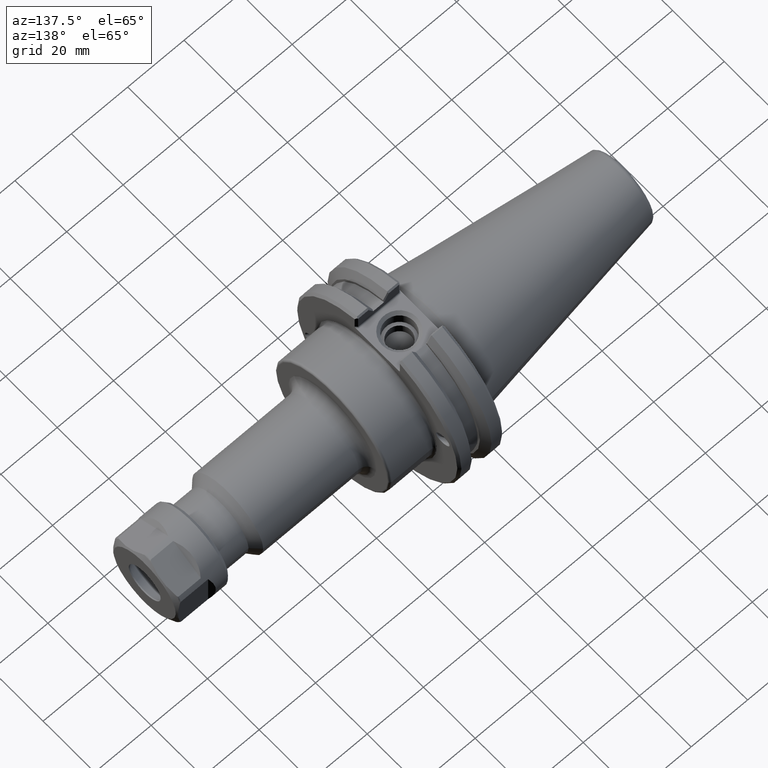
[diagram: clean part render]
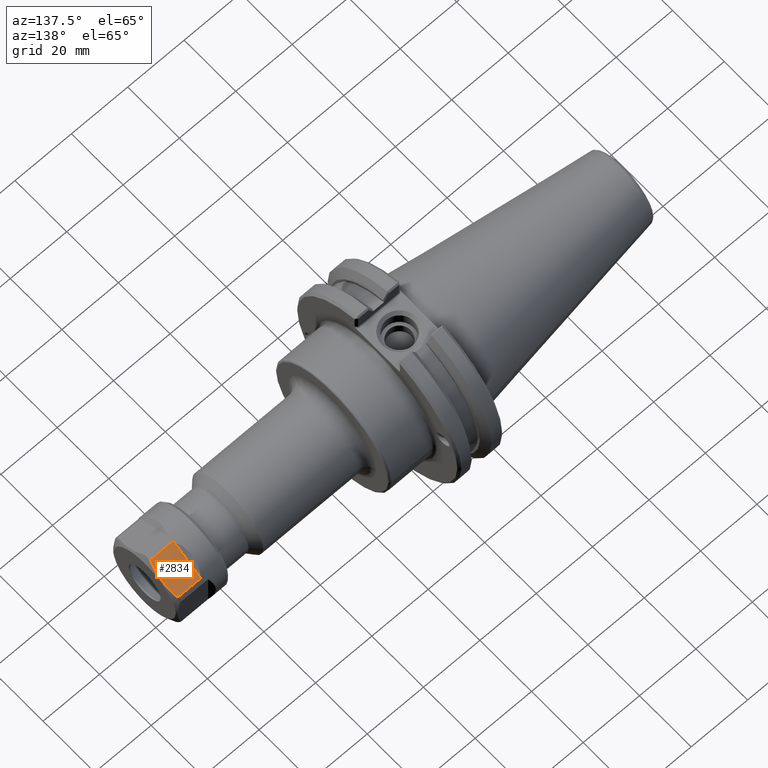
[diagram: same view with one face highlighted and labeled with its STEP entity id]
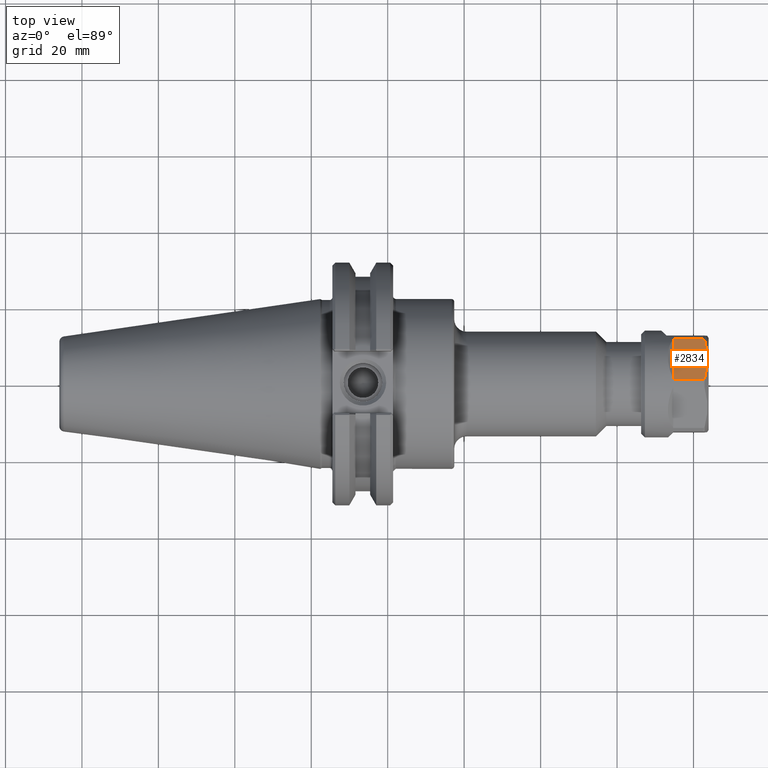
[diagram: same view with one face highlighted and labeled with its STEP entity id]
A machine part, auxiliary view. The second image highlights one B-rep face of the part: STEP entity #2834.
A second angle (top view) of the same face is appended — the face is thin or edge-on in the first view.
In plain terms, the highlighted planar face has unit normal (-0, -0.5, -0.866).
Its self-contained STEP definition (entity closure, byte-faithful):
#82=(
BOUNDED_CURVE()
B_SPLINE_CURVE(2,(#5954,#5955,#5956),.UNSPECIFIED.,.F.,.F.)
B_SPLINE_CURVE_WITH_KNOTS((3,3),(0.,1.12149805765919),.UNSPECIFIED.)
CURVE()
GEOMETRIC_REPRESENTATION_ITEM()
RATIONAL_B_SPLINE_CURVE((1.,1.09361329833771,1.))
REPRESENTATION_ITEM('')
);
#197=LINE('',#5842,#337);
#198=LINE('',#5846,#338);
#204=LINE('',#5938,#344);
#337=VECTOR('',#3780,7.82180985847815);
#338=VECTOR('',#3783,7.82180985847815);
#344=VECTOR('',#3827,12.3157900274404);
#491=PLANE('',#3132);
#776=FACE_OUTER_BOUND('',#1012,.T.);
#1012=EDGE_LOOP('',(#2446,#2447,#2448,#2449,#2450,#2451));
#1226=B_SPLINE_CURVE_WITH_KNOTS('',3,(#5941,#5942,#5943,#5944,#5945,#5946,
#5947,#5948,#5949,#5950,#5951,#5952),.UNSPECIFIED.,.F.,.F.,(4,2,2,2,2,4),
(-0.0737918488788995,-0.0724859676393653,-0.0354928490398611,-0.0136392047461638,
-0.00635802033410937,0.),.UNSPECIFIED.);
#1227=B_SPLINE_CURVE_WITH_KNOTS('',3,(#5957,#5958,#5959,#5960,#5961,#5962,
#5963,#5964,#5965,#5966,#5967,#5968),.UNSPECIFIED.,.F.,.F.,(4,2,2,2,2,4),
(0.,0.00635802033410932,0.0136392047461637,0.035492849039861,0.0724859676393652,
0.0737918488788992),.UNSPECIFIED.);
#1443=VERTEX_POINT('',#5839);
#1444=VERTEX_POINT('',#5841);
#1445=VERTEX_POINT('',#5843);
#1446=VERTEX_POINT('',#5845);
#1460=VERTEX_POINT('',#5940);
#1461=VERTEX_POINT('',#5953);
#1779=EDGE_CURVE('',#1443,#1444,#197,.T.);
#1781=EDGE_CURVE('',#1445,#1446,#198,.T.);
#1803=EDGE_CURVE('',#1444,#1445,#204,.T.);
#1804=EDGE_CURVE('',#1460,#1443,#1226,.T.);
#1805=EDGE_CURVE('',#1461,#1460,#82,.T.);
#1806=EDGE_CURVE('',#1446,#1461,#1227,.T.);
#2446=ORIENTED_EDGE('',*,*,#1779,.F.);
#2447=ORIENTED_EDGE('',*,*,#1804,.F.);
#2448=ORIENTED_EDGE('',*,*,#1805,.F.);
#2449=ORIENTED_EDGE('',*,*,#1806,.F.);
#2450=ORIENTED_EDGE('',*,*,#1781,.F.);
#2451=ORIENTED_EDGE('',*,*,#1803,.F.);
#2834=ADVANCED_FACE('',(#776),#491,.F.);
#3132=AXIS2_PLACEMENT_3D('',#5939,#3828,#3829);
#3780=DIRECTION('',(1.,0.,0.));
#3783=DIRECTION('',(-1.,0.,0.));
#3827=DIRECTION('',(0.,1.,-1.66533453693773E-16));
#3828=DIRECTION('center_axis',(2.48288722939764E-16,1.66533453693773E-16,
1.));
#3829=DIRECTION('ref_axis',(-1.,3.94430452610506E-32,1.77635683940025E-16));
#5839=CARTESIAN_POINT('',(1.12119014152185,-6.1578950137202,-12.573));
#5841=CARTESIAN_POINT('',(8.943,-6.1578950137202,-12.573));
#5842=CARTESIAN_POINT('',(8.74559507076093,-6.1578950137202,-12.573));
#5843=CARTESIAN_POINT('',(8.943,6.15789501372019,-12.573));
#5845=CARTESIAN_POINT('',(1.12119014152185,6.1578950137202,-12.573));
#5846=CARTESIAN_POINT('',(8.74559507076093,6.15789501372019,-12.573));
#5938=CARTESIAN_POINT('',(8.943,-1.11022302462516E-15,-12.573));
#5939=CARTESIAN_POINT('Origin',(0.,-1.11022302462516E-15,-12.573));
#5940=CARTESIAN_POINT('',(0.688177439629632,-5.56616304109034,-12.573));
#5941=CARTESIAN_POINT('Ctrl Pts',(0.688177439629629,-5.56616304109034,-12.573));
#5942=CARTESIAN_POINT('Ctrl Pts',(0.689175633962202,-5.57043397156746,-12.573));
#5943=CARTESIAN_POINT('Ctrl Pts',(0.690184142195284,-5.57468584249813,-12.573));
#5944=CARTESIAN_POINT('Ctrl Pts',(0.720058085522022,-5.69880463257803,-12.573));
#5945=CARTESIAN_POINT('Ctrl Pts',(0.767891610325395,-5.83883251224617,-12.573));
#5946=CARTESIAN_POINT('Ctrl Pts',(0.868941133795054,-6.00695782746599,-12.573));
#5947=CARTESIAN_POINT('Ctrl Pts',(0.923718976070076,-6.07508048374376,-12.573));
#5948=CARTESIAN_POINT('Ctrl Pts',(1.00521872017035,-6.12789457043331,-12.573));
#5949=CARTESIAN_POINT('Ctrl Pts',(1.03139506563093,-6.14066364563107,-12.573));
#5950=CARTESIAN_POINT('Ctrl Pts',(1.07487052984685,-6.15396254580142,-12.573));
#5951=CARTESIAN_POINT('Ctrl Pts',(1.09999674040815,-6.1578950137202,-12.573));
#5952=CARTESIAN_POINT('Ctrl Pts',(1.12119014152185,-6.1578950137202,-12.573));
#5953=CARTESIAN_POINT('',(0.688177439629632,5.56616304109033,-12.573));
#5954=CARTESIAN_POINT('Ctrl Pts',(0.688177439629635,5.56616304109034,-12.573));
#5955=CARTESIAN_POINT('Ctrl Pts',(-0.612736361601572,-3.34937830492925E-15,
-12.573));
#5956=CARTESIAN_POINT('Ctrl Pts',(0.688177439629634,-5.56616304109035,-12.573));
#5957=CARTESIAN_POINT('Ctrl Pts',(1.12119014152185,6.15789501372019,-12.573));
#5958=CARTESIAN_POINT('Ctrl Pts',(1.09999674040815,6.15789501372019,-12.573));
#5959=CARTESIAN_POINT('Ctrl Pts',(1.07487052984685,6.15396254580141,-12.573));
#5960=CARTESIAN_POINT('Ctrl Pts',(1.03139506563093,6.14066364563107,-12.573));
#5961=CARTESIAN_POINT('Ctrl Pts',(1.00521872017035,6.1278945704333,-12.573));
#5962=CARTESIAN_POINT('Ctrl Pts',(0.923718976070076,6.07508048374376,-12.573));
#5963=CARTESIAN_POINT('Ctrl Pts',(0.868941133795054,6.00695782746598,-12.573));
#5964=CARTESIAN_POINT('Ctrl Pts',(0.767891610325395,5.83883251224617,-12.573));
#5965=CARTESIAN_POINT('Ctrl Pts',(0.720058085522022,5.69880463257802,-12.573));
#5966=CARTESIAN_POINT('Ctrl Pts',(0.690184142195284,5.57468584249813,-12.573));
#5967=CARTESIAN_POINT('Ctrl Pts',(0.689175633962203,5.57043397156746,-12.573));
#5968=CARTESIAN_POINT('Ctrl Pts',(0.68817743962963,5.56616304109033,-12.573));